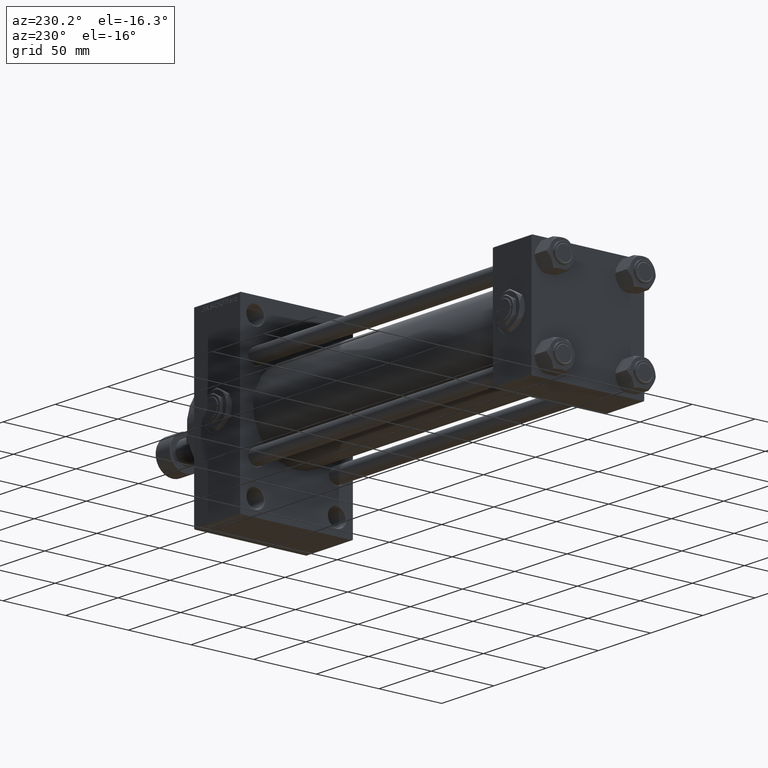
[diagram: clean part render]
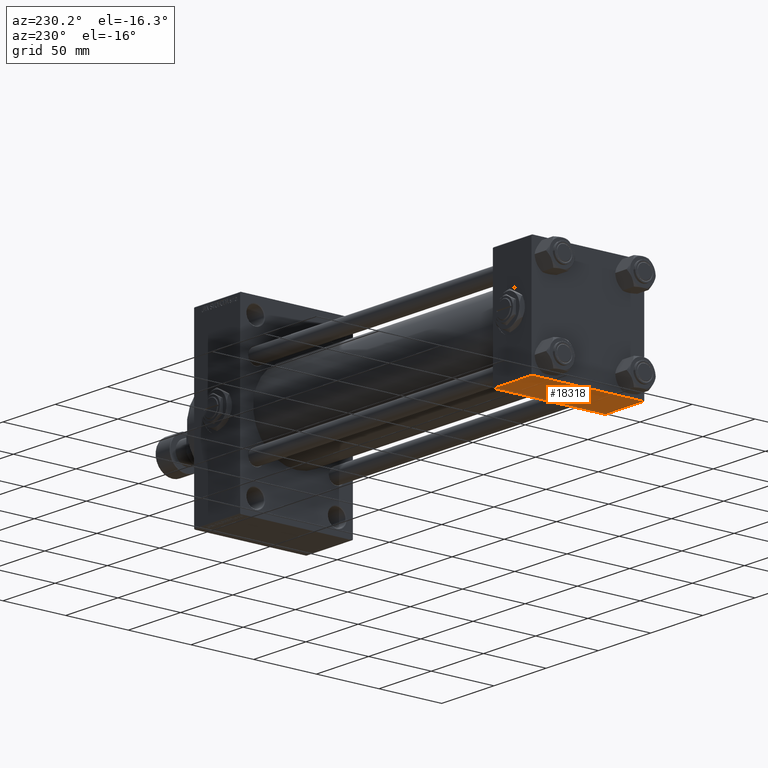
[diagram: same view with one face highlighted and labeled with its STEP entity id]
A machine part, auxiliary view. The second image highlights one B-rep face of the part: STEP entity #18318.
In plain terms, the highlighted planar face has unit normal (0, 0, -1).
Its self-contained STEP definition (entity closure, byte-faithful):
#536 = LINE ( 'NONE', #26281, #14087 ) ;
#2326 = LINE ( 'NONE', #17683, #36502 ) ;
#3367 = VERTEX_POINT ( 'NONE', #26301 ) ;
#5659 = CARTESIAN_POINT ( 'NONE',  ( 37.00000000000000000, 44.49999999999998579, -44.99999999999998579 ) ) ;
#6590 = PLANE ( 'NONE',  #11951 ) ;
#7372 = DIRECTION ( 'NONE',  ( 1.000000000000000000, 0.000000000000000000, 0.000000000000000000 ) ) ;
#10362 = DIRECTION ( 'NONE',  ( 0.000000000000000000, 1.541976423090495880E-16, -1.000000000000000000 ) ) ;
#10957 = DIRECTION ( 'NONE',  ( 0.000000000000000000, -1.000000000000000000, -1.541976423090495633E-16 ) ) ;
#11951 = AXIS2_PLACEMENT_3D ( 'NONE', #44802, #10362, #25694 ) ;
#13922 = DIRECTION ( 'NONE',  ( -1.000000000000000000, 0.000000000000000000, 0.000000000000000000 ) ) ;
#14087 = VECTOR ( 'NONE', #10957, 1000.000000000000000 ) ;
#16413 = VERTEX_POINT ( 'NONE', #5659 ) ;
#17683 = CARTESIAN_POINT ( 'NONE',  ( 0.000000000000000000, -44.49999999999998579, -45.00000000000000000 ) ) ;
#18001 = VERTEX_POINT ( 'NONE', #44372 ) ;
#18318 = ADVANCED_FACE ( 'NONE', ( #29462 ), #6590, .T. ) ;
#21974 = ORIENTED_EDGE ( 'NONE', *, *, #30841, .T. ) ;
#23081 = VECTOR ( 'NONE', #34736, 1000.000000000000000 ) ;
#25694 = DIRECTION ( 'NONE',  ( 0.000000000000000000, 1.000000000000000000, 1.541976423090495880E-16 ) ) ;
#26281 = CARTESIAN_POINT ( 'NONE',  ( 37.00000000000000000, 44.99999999999998579, -44.99999999999998579 ) ) ;
#26301 = CARTESIAN_POINT ( 'NONE',  ( 37.00000000000000000, -44.49999999999995737, -45.00000000000000000 ) ) ;
#26465 = CARTESIAN_POINT ( 'NONE',  ( 37.00000000000000000, 44.49999999999998579, -44.99999999999998579 ) ) ;
#26871 = EDGE_LOOP ( 'NONE', ( #30396, #21974, #29605, #35492 ) ) ;
#26948 = CARTESIAN_POINT ( 'NONE',  ( 0.000000000000000000, 44.99999999999998579, -44.99999999999998579 ) ) ;
#29462 = FACE_OUTER_BOUND ( 'NONE', #26871, .T. ) ;
#29605 = ORIENTED_EDGE ( 'NONE', *, *, #41451, .T. ) ;
#30289 = CARTESIAN_POINT ( 'NONE',  ( 0.000000000000000000, -44.49999999999995737, -45.00000000000000000 ) ) ;
#30396 = ORIENTED_EDGE ( 'NONE', *, *, #43869, .F. ) ;
#30739 = VECTOR ( 'NONE', #7372, 1000.000000000000000 ) ;
#30841 = EDGE_CURVE ( 'NONE', #18001, #16413, #34012, .T. ) ;
#30961 = LINE ( 'NONE', #26948, #23081 ) ;
#32425 = VERTEX_POINT ( 'NONE', #30289 ) ;
#34012 = LINE ( 'NONE', #26465, #30739 ) ;
#34736 = DIRECTION ( 'NONE',  ( 0.000000000000000000, -1.000000000000000000, -1.541976423090495633E-16 ) ) ;
#35492 = ORIENTED_EDGE ( 'NONE', *, *, #38318, .T. ) ;
#36502 = VECTOR ( 'NONE', #13922, 1000.000000000000000 ) ;
#38318 = EDGE_CURVE ( 'NONE', #3367, #32425, #2326, .T. ) ;
#41451 = EDGE_CURVE ( 'NONE', #16413, #3367, #536, .T. ) ;
#43869 = EDGE_CURVE ( 'NONE', #18001, #32425, #30961, .T. ) ;
#44372 = CARTESIAN_POINT ( 'NONE',  ( 0.000000000000000000, 44.49999999999998579, -44.99999999999998579 ) ) ;
#44802 = CARTESIAN_POINT ( 'NONE',  ( 37.00000000000000000, 44.99999999999998579, -44.99999999999998579 ) ) ;